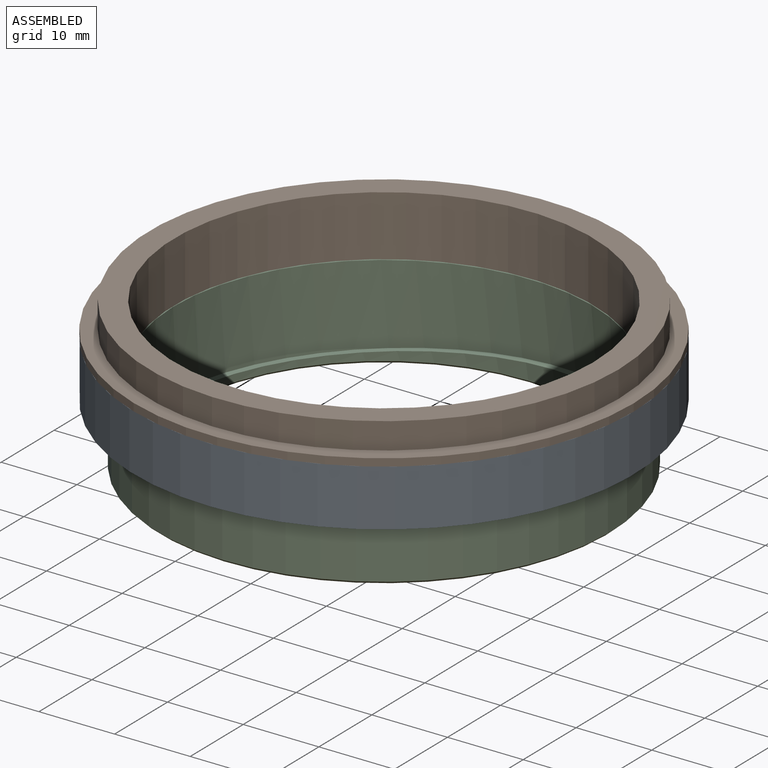
[diagram: assembled view]
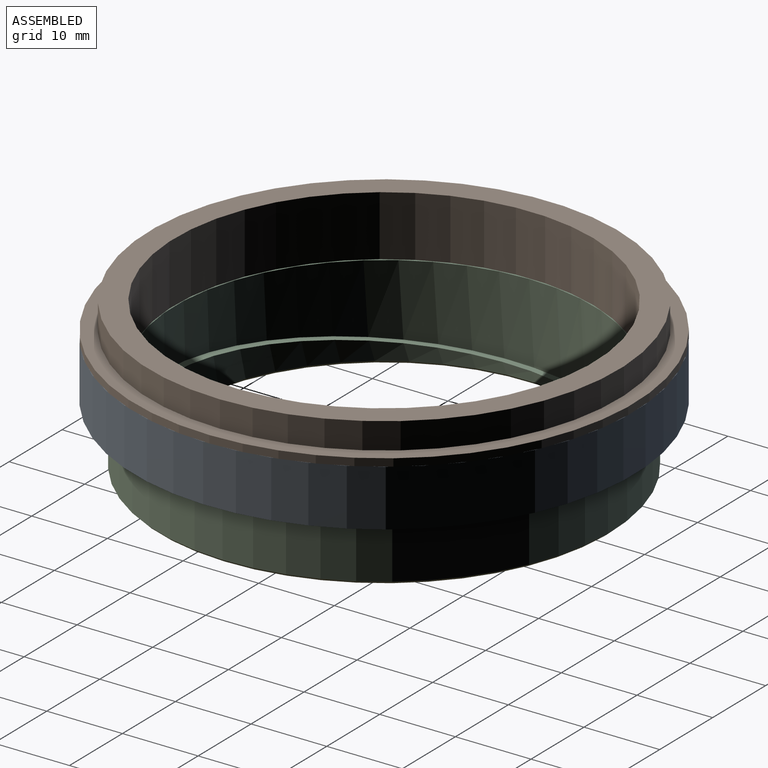
[diagram: assembled view, second angle]
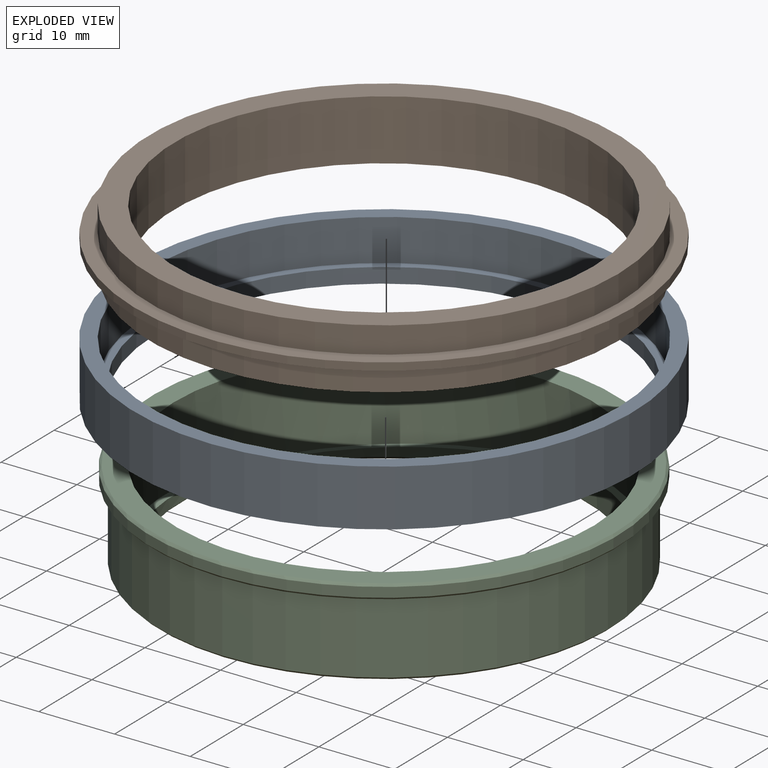
[diagram: exploded view]
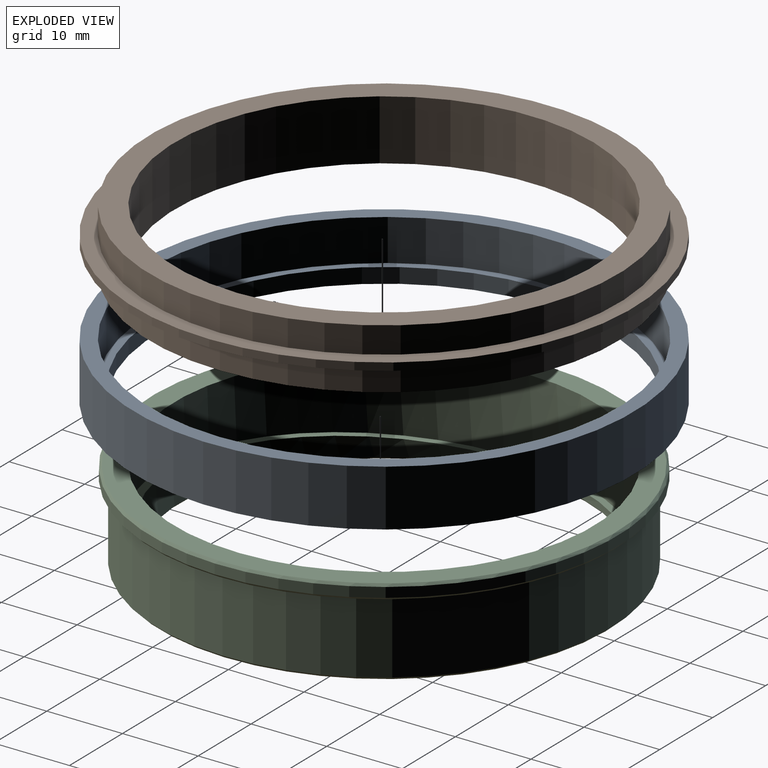
[diagram: exploded view, second angle]
ASSEMBLY  parts=3 mates=4
PART A: 6 faces, bbox 66x66x7.5 mm
  f0: cylinder r=33mm len=66mm, axis (0,0,1), area 1555.1mm2, adj f2,f3
  f1: cylinder r=31mm len=62mm, axis (0,0,1), area 1071.3mm2, adj f2,f5
  f2: plane 66x66mm, normal (0,0,1), area 402.1mm2, adj f0,f1
  f3: plane 66x66mm, normal (0,0,-1), area 593.8mm2, adj f0,f4
  f4: cylinder r=30mm len=60mm, axis (0,0,1), area 377mm2, adj f3,f5
  f5: plane 62x62mm, normal (0,0,1), area 191.6mm2, adj f1,f4
PART B: 8 faces, bbox 66x66x8 mm
  f0: plane 66x66mm, normal (0,0,-1), area 402.1mm2, adj f1,f7
  f1: cylinder r=31mm len=62mm, axis (0,0,1), area 681.7mm2, adj f0,f2
  f2: plane 62x62mm, normal (0,0,-1), area 608.6mm2, adj f1,f3
  f3: cylinder r=27.7mm len=55.4mm, axis (0,0,1), area 1392.4mm2, adj f2,f4
  f4: plane 62x62mm, normal (0,0,1), area 608.6mm2, adj f3,f5
  f5: cylinder r=31mm len=62mm, axis (0,0,1), area 681.7mm2, adj f4,f6
  f6: plane 66x66mm, normal (0,0,1), area 402.1mm2, adj f5,f7
  f7: cylinder r=33mm len=66mm, axis (0,0,1), area 207.3mm2, adj f0,f6
PART C: 12 faces, bbox 61.8x61.8x11.9 mm
  f0: cylinder r=26.7mm len=53.4mm, axis (0,0,1), area 549.7mm2, adj f2,f9
  f1: plane 59.2x59.2mm, normal (0,0,-1), area 462.3mm2, adj f8,f9
  f2: plane 55.4x55.4mm, normal (-0.09,0,1), area 171.6mm2, adj f0,f5
  f3: plane 61.2x61.2mm, normal (0,0,-1), area 133mm2, adj f4,f10
  f4: cylinder r=29.9mm len=59.8mm, axis (0,0,1), area 1822.3mm2, adj f3,f8
  f5: cylinder r=27.7mm len=55.4mm, axis (0,0,1), area 1448.6mm2, adj f2,f6
  f6: plane 61.2x61.2mm, normal (0,0,1), area 531.1mm2, adj f5,f11
  f7: cylinder r=30.9mm len=61.8mm, axis (0,0,1), area 252.4mm2, adj f10,f11
  f8: cone r=29.9mm half-angle=45deg, axis (0,0,1), area 79.3mm2, adj f1,f4
  f9: cone r=27mm half-angle=45deg, axis (0,0,-1), area 71.6mm2, adj f0,f1
  f10: cone r=30.9mm half-angle=45deg, axis (0,0,1), area 82mm2, adj f3,f7
  f11: cone r=30.6mm half-angle=45deg, axis (0,0,-1), area 82mm2, adj f6,f7
PLACE A rot(axis=(0,0,-1),30.8deg) t=(0.6,0,-8.32)mm
PLACE B at identity fixed
PLACE C rot(axis=(0,0,-1),30.8deg) t=(0.6,0,6.69)mm
MATE planar C.f0 <-> A.f0  axis (0,0,-1) through (0.6,0,11.72)mm
MATE cylindrical C.f0 <-> A.f0  axis (0,0,1) through (0.6,0,12.67)mm
MATE planar A.f0 <-> B.f1  axis (0,0,1) through (0.6,0,17.22)mm
MATE cylindrical B.f1 <-> A.f0  axis (0,0,1) through (0.6,0,15.47)mm
